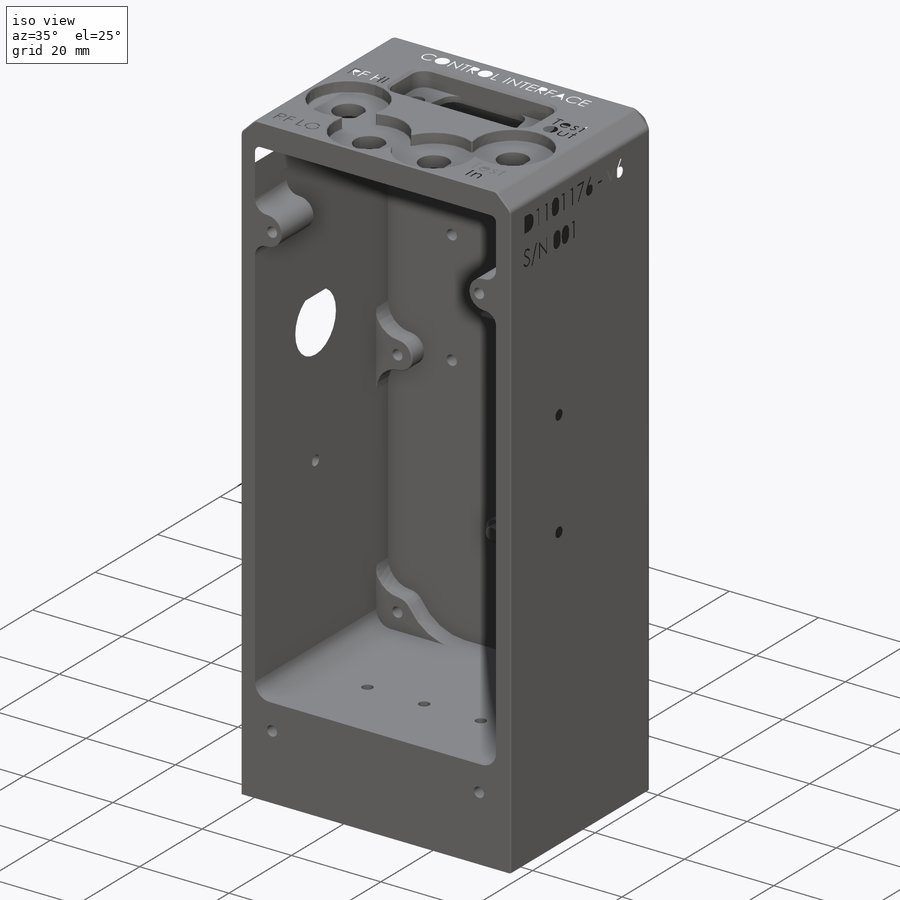
[diagram: iso view]
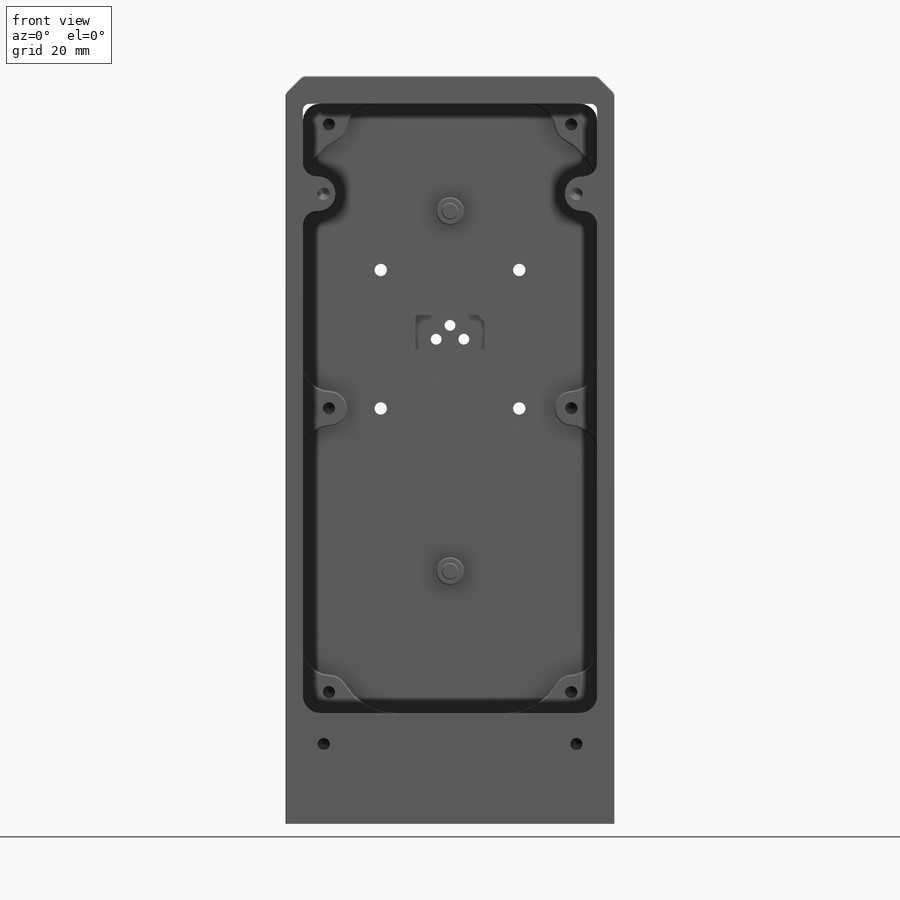
[diagram: front view]
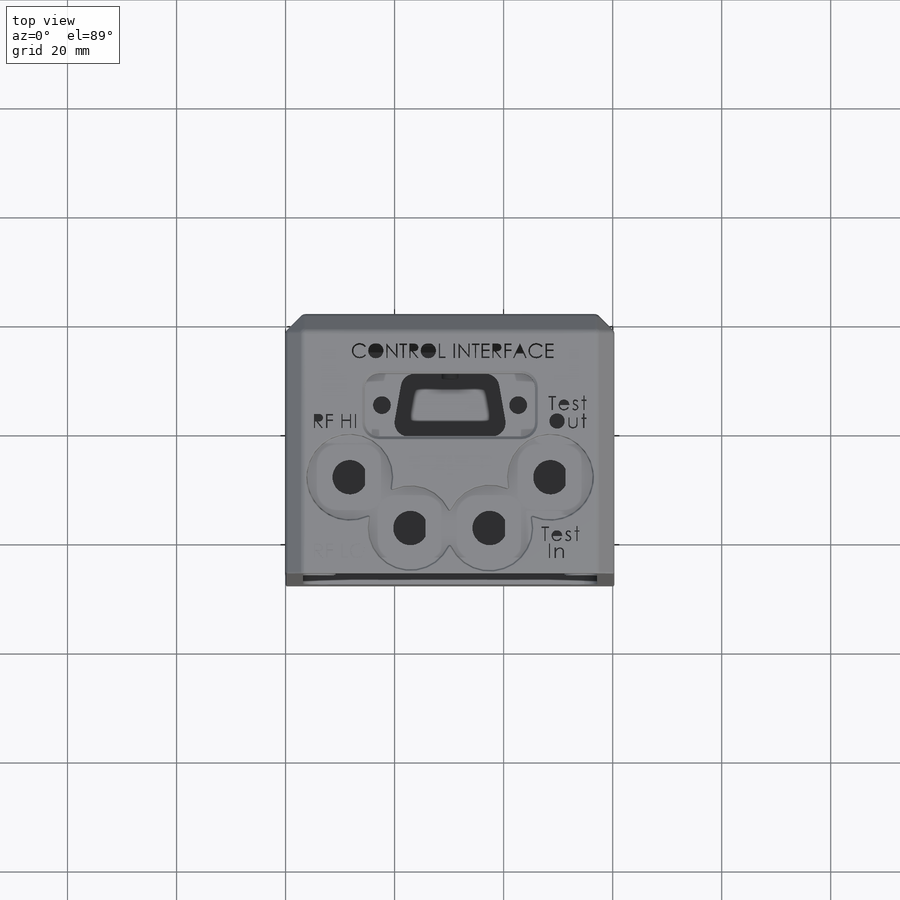
[diagram: top view]
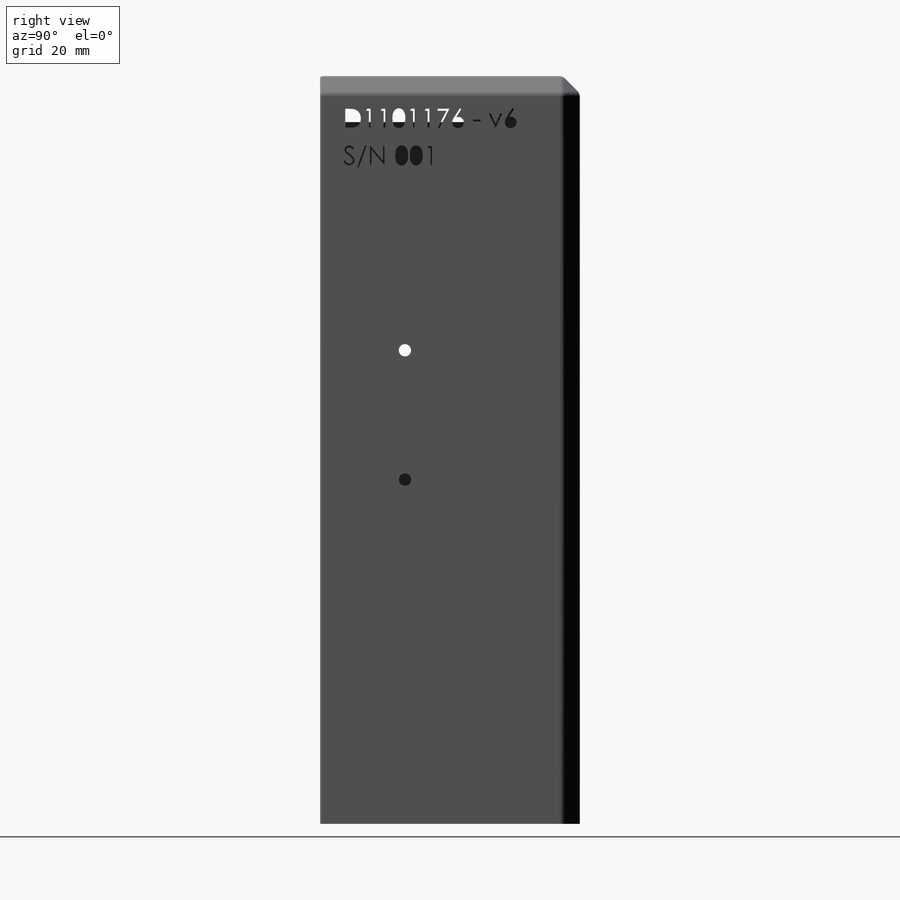
[diagram: right view]
SOLIDWORKS PART (.sldprt)
format: sldprt  version: not decoded by parser v0  size: 2,890,240 bytes
history: native  units: mm
features: sketch x34, fillet x24, cut_extrude x13, thread x9, hole x8, extrude x5, plane x4, chamfer x3, material x1, shell x1 + 1 further entry (+10 scaffold rows collapsed)
feature tree (113):
  scaffold x10  (default folders/planes/origin — collapsed)
  material  "Material <not specified>"
  "Origin"  ID=392984584
  sketch  "Sketch1"  dims[D1=137.16mm D2=60.325mm]
  extrude  "Boss-Extrude1"  Depth=47.625mm
  shell  "Shell1"  Thickness=5.08mm
  chamfer  "Chamfer1"  Distance=3.175mm Angle=45deg
  fillet  "Fillet9"  Radius=1.27mm
  plane  "Plane1"  Offset=36.719688mm
  hole  "1/4-20 Tapped Hole1"  Diameter=5.1054mm Depth=15.24mm
  sketch  "Sketch3"  dims[c1.D1=25.4mm c1.D2=25.4mm c1.D3=25.4mm c1.D4=25.4mm c2.D1=17.4625mm c2.D2=17.4625mm c2.D5=50.8mm]
  sketch  "Sketch2"  dims[hole-wizard template sketch: 47 standard entries collapsed; hole parameters kept: c15.Tap Drill Depth=15.24mm c15.D3=~14.816244mm c15.Drill Angle=118.0deg]
  sketch  "Sketch36"  dims[D5=6.35mm D6=6.35mm D1=21.59mm D2=21.59mm D3=5.969mm D4=5.9563mm]
  extrude  "Boss-Extrude5"  Depth=10.16mm
  fillet  "Fillet20"  Radius=2.54mm
  fillet  "Fillet21"  Radius=2.54mm
  hole  "#4-40 Tapped Hole1"  Diameter=2.2606mm Depth=8.89mm
  sketch  "Sketch5"  dims[c1.D1=21.59mm c1.D2=3.175mm c1.D3=21.59mm c1.D4=6.985mm c1.D5=6.985mm c1.D6=42.8625mm c1.D7=162.56mm c1.D8=57.15mm c1.D9=50.8mm c1.D10=3.175mm c1.D11=57.15mm c1.D12=~2.263176mm c2.D8=~2.263176mm c2.D7=33.655mm c3.D8=146.05mm c3.D9=5.715mm c3.D10=1.905mm c4.D8=3.175mm c4.D10=5.715mm c4.D11=6.985mm c4.D12=6.985mm c4.D13=3.175mm c4.D14=3.175mm c4.D15=33.655mm c4.D16=24.4475mm c4.D17=39.6875mm c4.D6=24.4475mm c4.D2=14.605mm]
  sketch  "Sketch4"  dims[hole-wizard template sketch: 50 standard entries collapsed; hole parameters above]
  plane  "Plane2"
  fillet  "Fillet4"  Radius=3.175mm
  sketch  "Sketch13"  dims[c1.D1=1.9812mm c1.D2=88.9mm c1.D3=27.6225mm c1.D5=5.0 c1.D4=3.0 c2.D5=2.0]
  cut_extrude  "Cut-Extrude4"  [1 undecoded]
  hole  "#4-40 Tapped Hole2"  Diameter=2.2606mm Depth=7.5946mm
  sketch  "Sketch15"  dims[c1.D1=1.9812mm c1.D2=1.9812mm c1.D3=1.9812mm c1.D4=1.9812mm c1.D5=1.9812mm c1.D6=1.9812mm c1.D7=1.9812mm c1.D8=1.9812mm c2.D1=1.9812mm c2.D2=1.9812mm c2.D3=1.9812mm c2.D4=1.9812mm c2.D5=1.9812mm c2.D6=1.9812mm c2.D7=1.9812mm c2.D8=1.9812mm c3.D1=12.7mm c3.D2=12.7mm c3.D3=12.7mm c3.D4=12.7mm c3.D5=12.7mm c3.D6=12.7mm c3.D7=12.7mm c3.D8=12.7mm c4.D1=12.7mm c4.D2=12.7mm c4.D3=12.7mm c4.D4=12.7mm c4.D5=12.7mm c4.D6=12.7mm c4.D7=12.7mm c4.D8=12.7mm]
  sketch  "Sketch14"  dims[hole-wizard template sketch: 50 standard entries collapsed; hole parameters above]
  sketch  "Sketch16"  dims[c1.D1=6.35mm c1.D2=6.35mm c1.D3=6.35mm c1.D4=6.35mm c1.D5=6.35mm c1.D6=6.35mm c1.D7=3.81mm c1.D8=3.81mm c1.D9=44.45mm c1.D10=44.45mm c1.D11=44.45mm c1.D12=52.07mm c1.D13=104.14mm c1.D14=52.07mm c1.D15=24.13mm c2.D7=24.13mm c2.D8=24.13mm]
  extrude  "Boss-Extrude2"  Depth=3.81mm
  hole  "#4-40 Tapped Hole4"  Diameter=2.2606mm Depth=6.35mm
  sketch  "Sketch20"  dims[c1.D1=3.175mm c1.D2=3.81mm c1.D3=3.81mm c1.D4=44.45mm c2.D1=7.9375mm c2.D5=7.9375mm c2.D6=44.45mm c2.D7=44.45mm c2.D8=7.9375mm c2.D9=52.07mm c2.D10=52.07mm c2.D11=52.07mm c2.D12=52.07mm]
  sketch  "Sketch19"  dims[hole-wizard template sketch: 47 standard entries collapsed; hole parameters kept: c15.Tap Drill Depth=6.35mm c15.D3=~14.816244mm c15.Drill Angle=118.0deg]
  thread  "Hole Thread7"  Diameter=5.6896mm  [1 undecoded]
  thread  "Hole Thread8"  Diameter=5.6896mm  [1 undecoded]
  thread  "Hole Thread9"  Diameter=5.6896mm  [1 undecoded]
  thread  "Hole Thread10"  Diameter=5.6896mm  [1 undecoded]
  thread  "Hole Thread11"  Diameter=5.6896mm  [1 undecoded]
  thread  "Hole Thread12"  Diameter=5.6896mm  [1 undecoded]
  sketch  "Sketch21"  dims[c1.D1=10.4648mm c1.D2=12.5476mm c1.D3=30.1625mm c1.D4=19.05mm c2.D1=12.5476mm c2.D2=10.4648mm c2.D3=30.1625mm c2.D5=19.05mm c3.D5=80.0deg c3.D6=19.05mm c4.D6=80.0deg c4.D1=21.336mm c4.D2=12.5476mm c5.D2=10.0deg c5.D4=~14.026306mm c6.D4=10.0deg c6.D2=12.5476mm c7.D2=80.0deg c7.D4=12.5476mm c8.D4=80.0deg c8.D5=11.5316mm c8.D6=10.9728mm c8.D7=8.636mm c8.D8=~8.633336mm]
  cut_extrude  "Cut-Extrude10"  [1 undecoded]
  sketch  "Sketch22"  dims[c1.D1=11.5316mm c1.D2=30.1625mm c1.D3=31.1912mm c1.D4=10.4648mm c2.D2=10.9728mm c2.D4=30.1625mm]
  cut_extrude  "Cut-Extrude6"  Depth=3.81mm
  hole  "#4 Clearance Hole2"  Diameter=3.2639mm Depth=14.732mm
  sketch  "Sketch24"  dims[D1=24.9936mm D2=0.0mm D3=0.0mm D4=17.6657mm]
  sketch  "Sketch23"  dims[hole-wizard template sketch: 47 standard entries collapsed; hole parameters kept: c15.Hole Depth=14.732mm c15.D3=~14.816244mm c15.Drill Angle=118.0deg]
  fillet  "Fillet5"  Radius=2.54mm
  sketch  "Sketch42"  dims[c1.D1=6.35mm c1.D2=6.35mm c1.D3=6.35mm c1.D4=6.35mm c1.D14=3.175mm c2.D2=6.35mm c2.D3=6.35mm c3.D2=6.35mm c3.D3=6.35mm c3.D4=6.35mm c3.D14=6.35mm c3.D15=6.35mm c3.D5=13.2334mm c3.D6=13.2334mm c3.D7=13.2334mm c3.D8=11.7602mm c3.D9=17.653mm c3.D10=12.7mm c3.D11=12.7mm c3.D12=17.653mm c3.D13=2.794mm c4.D14=10.3124mm c4.D5=8.3312mm c4.D6=8.3312mm c4.D7=14.5288mm c4.D10=14.5288mm c4.D11=14.5288mm c4.D13=~11.74788mm c5.D14=2.794mm c5.D15=2.794mm c5.D16=2.794mm c5.D17=2.794mm c5.D18=2.794mm]
  cut_extrude  "Cut-Extrude11"  [1 undecoded]
  sketch  "Sketch43"  dims[c1.D1=15.748mm c1.D2=15.494mm c1.D3=15.748mm c1.D4=15.748mm c1.D5=11.7602mm c1.D6=14.5288mm c1.D7=14.097mm c1.D8=14.097mm c1.D9=17.653mm c1.D10=17.653mm c1.D11=8.3312mm c1.D12=8.3312mm c2.D7=14.5288mm c2.D8=14.5288mm c2.D13=~11.74788mm]
  cut_extrude  "Cut-Extrude12"  Depth=2.54mm
  sketch  "Sketch32"  dims[c1.D1=5.08mm c1.D2=5.08mm c1.D3=30.1625mm c1.D4=30.1625mm c1.D5=~23.196804mm c1.D6=46.355mm c1.D7=~113.963196mm c2.D5=112.395mm]
  extrude  "Boss-Extrude3"  Depth=3.81mm
  sketch  "Sketch33"  dims[D1=3.048mm D2=3.048mm D3=112.395mm D4=30.1625mm D5=30.1625mm D6=46.355mm]
  extrude  "Boss-Extrude4"  Depth=1.524mm
  fillet  "Fillet8"  Radius=5.08mm
  fillet  "Fillet31"  Radius=11.1252mm
  sketch  "Sketch35"  dims[D1=90.17mm D2=2.54mm D3=12.7mm D4=6.35mm D5=1.27mm D6=1.27mm]
  cut_extrude  "Cut-Extrude8"  Depth=3.81mm
  fillet  "Fillet10"  Radius=0.635mm
  fillet  "Fillet11"  Radius=0.254mm
  fillet  "Fillet12"  Radius=0.254mm
  fillet  "Fillet13"  Radius=0.254mm
  fillet  "Fillet14"  Radius=0.254mm
  fillet  "Fillet15"  Radius=0.254mm
  fillet  "Fillet17"  Radius=0.254mm
  fillet  "Fillet18"  Radius=0.254mm
  fillet  "Fillet19"  Radius=0.254mm
  sketch  "Sketch37"  dims[c1.D1=1.9812mm c1.D2=1.9812mm c1.D3=20.2692mm c1.D4=22.9108mm c2.D1=2.54mm c2.D2=2.54mm c2.D5=2.5908mm c2.D6=2.5908mm c3.D5=2.5908mm c3.D6=~1.337988mm c4.D6=~5.821882deg c5.D6=2.5908mm c5.D7=2.5908mm c5.D8=1.2954mm c5.D9=1.2954mm c5.D10=1.2954mm]
  cut_extrude  "Cut-Extrude9"  Depth=1.3208mm
  fillet  "Fillet22"  Radius=0.254mm
  fillet  "Fillet23"  Radius=0.254mm
  fillet  "Fillet24"  Radius=0.254mm
  hole  "#4-40 Tapped Hole5"  [1 undecoded]
  sketch  "Sketch39"  dims[D1=15.5702mm D2=15.5702mm D3=15.5702mm D4=12.7mm D5=12.7mm D6=30.1625mm]
  thread  "Hole Thread14"  Diameter=2.8448mm  [1 undecoded]
  sketch  "Sketch38"  dims[hole-wizard template sketch: 60 standard entries collapsed; hole parameters kept: c18.Thru Tap Drill Depth=20.32mm]
  thread  "Hole Thread16"  Diameter=2.8448mm  [1 undecoded]
  thread  "Hole Thread17"  Diameter=2.8448mm  [1 undecoded]
  fillet  "Fillet25"  Radius=2.54mm
  chamfer  "Chamfer3"  Distance=0.508mm Angle=45deg
  fillet  "Fillet29"  Radius=0.254mm
  fillet  "Fillet30"  Radius=2.794mm
  hole  "#4-40 Tapped Hole7"  Diameter=2.2606mm Depth=3.175mm
  sketch  "Sketch45"  dims[D1=19.3802mm D2=60.96mm]
  sketch  "Sketch44"  dims[hole-wizard template sketch: 60 standard entries collapsed; hole parameters kept: c18.Thru Tap Drill Depth=3.175mm]
  chamfer  "Chamfer4"  Distance=0.1778mm Angle=60deg
  plane  "Plane3"
  plane  "Plane4"
  sketch  "Sketch49"
  cut_extrude  "Cut-Extrude13"  Depth=0.254mm
  sketch  "Sketch52"  dims[D1=13.0048mm D2=5.6134mm D3=88.9mm D4=19.3802mm]
  cut_extrude  "Cut-Extrude14"  [1 undecoded]
  hole  "#4-40 Tapped Hole6"  Diameter=2.2606mm Depth=3.175mm
  sketch  "Sketch54"  dims[c1.D1=~63.12154mm c1.D2=~87.01786mm c1.D3=~32.07766mm c1.D4=~32.07766mm c2.D2=~86.87054mm]
  sketch  "Sketch53"  dims[hole-wizard template sketch: 60 standard entries collapsed; hole parameters kept: c18.Thru Tap Drill Depth=3.175mm]
  sketch  "Sketch55"  dims[c1.D1=~2.38252mm c1.D2=~6.162633mm c1.D3=0.0mm c1.D4=~0.000316mm c1.D5=~2.38252mm c1.D6=~2.38252mm c1.D7=~2.38252mm c2.D5=~2.38252mm]
  cut_extrude  "Cut-Extrude15"  Depth=27.94mm
  fillet  "Fillet32"  Radius=0.254mm
  sketch  "Sketch56"  dims[D1=~2.38252mm]
  cut_extrude  "Cut-Extrude18"  Depth=27.94mm
  fillet  "Fillet33"  Radius=0.254mm
  sketch  "Sketch57"
  cut_extrude  "Cut-Extrude19"  Depth=0.254mm
  sketch  "Sketch59"
  cut_extrude  "Cut-Extrude20"  Depth=0.254mm
decode coverage: 89 of 97 modeling features carry decoded parameters; 1 rows unclassified (native names shown)
note: ~ marks probable driven/reference dimensions
note: 14 parameter values undecoded
summary: Diameter pulled from absorbed wizard sketch | no parameter record found for 5 features
note: suppression state not decoded; provenance and decode notes live in map.json
